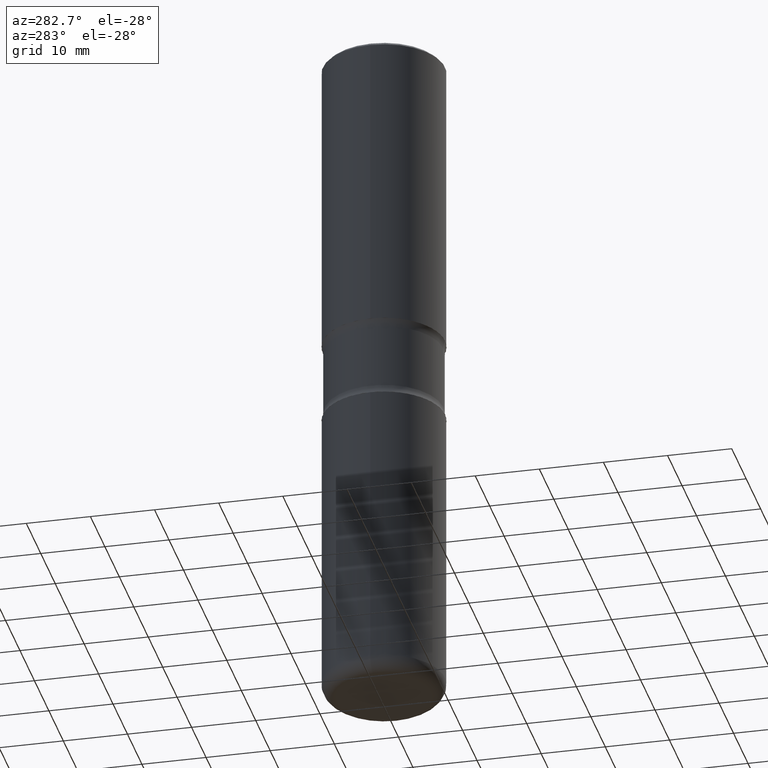
[diagram: clean part render]
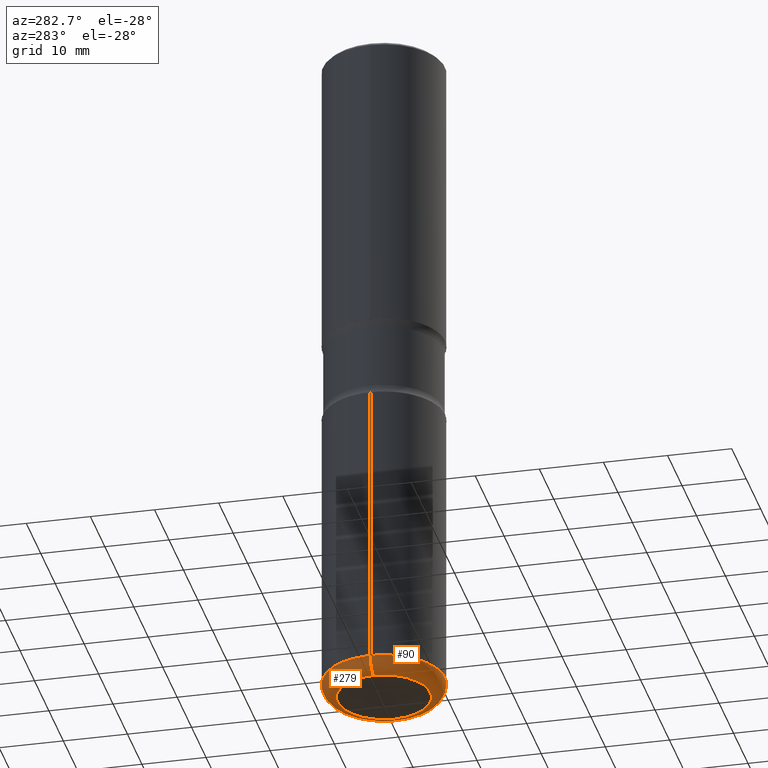
[diagram: same view with one multi-face feature highlighted, each face labeled with its STEP entity id]
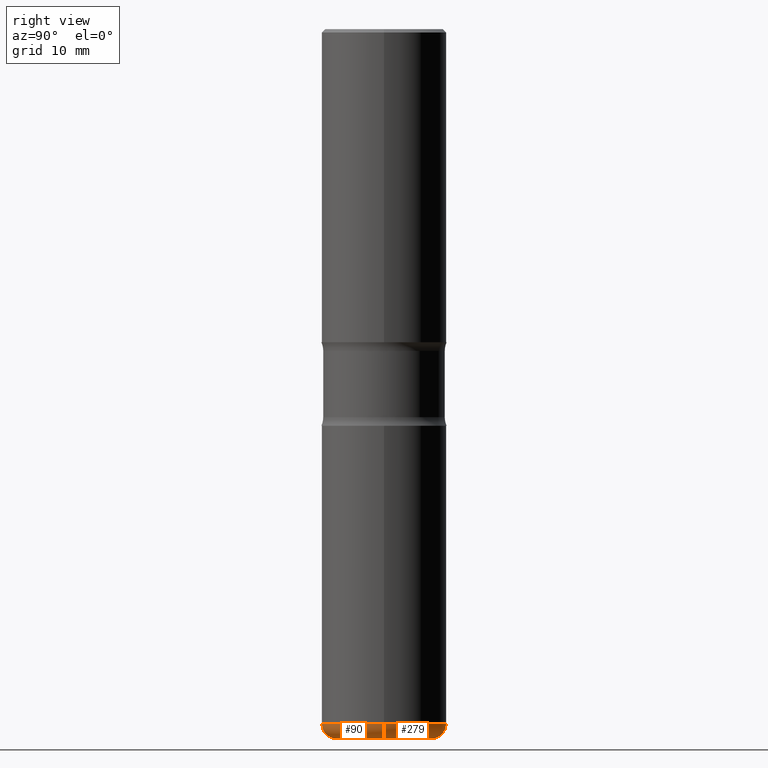
[diagram: same view with one multi-face feature highlighted, each face labeled with its STEP entity id]
A machine part, auxiliary view. The highlighted faces form ONE feature: a constant-radius fillet chain: 2 tangent blend faces with common blend radius 2.286 mm. The faces share edges in the B-rep.
A second angle (right view) of the same feature is appended — it is thin or edge-on in the first view.
Their STEP definitions:
[1] entity #279 (Torus):
#7 = ORIENTED_EDGE ( 'NONE', *, *, #220, .F. ) ;
#27 = DIRECTION ( 'NONE',  ( 1.000000000000000000, -6.982962677686273021E-15, 0.000000000000000000 ) ) ;
#38 = VERTEX_POINT ( 'NONE', #465 ) ;
#42 = CIRCLE ( 'NONE', #431, 0.2850000000000004197 ) ;
#49 = DIRECTION ( 'NONE',  ( 7.105427357601001859E-15, 1.000000000000000000, -3.491481338843145583E-15 ) ) ;
#57 = EDGE_CURVE ( 'NONE', #496, #396, #509, .T. ) ;
#86 = TOROIDAL_SURFACE ( 'NONE', #158, 0.2850000000000004197, 0.09000000000000016320 ) ;
#101 = CARTESIAN_POINT ( 'NONE',  ( 0.2850000000000004197, -1.682894005322395705E-14, -4.250000000000000000 ) ) ;
#102 = ORIENTED_EDGE ( 'NONE', *, *, #57, .F. ) ;
#129 = DIRECTION ( 'NONE',  ( -2.445468806185136597E-29, 3.491481338843145583E-15, 1.000000000000000000 ) ) ;
#139 = CIRCLE ( 'NONE', #463, 0.09000000000000020484 ) ;
#142 = DIRECTION ( 'NONE',  ( 1.000000000000000000, -6.982962677686265922E-15, 0.000000000000000000 ) ) ;
#156 = CARTESIAN_POINT ( 'NONE',  ( 1.017315023373016887E-28, -1.452456236958748398E-14, -4.160000000000000142 ) ) ;
#158 = AXIS2_PLACEMENT_3D ( 'NONE', #391, #551, #470 ) ;
#159 = CARTESIAN_POINT ( 'NONE',  ( 0.2850000000000004197, -1.651470673272807378E-14, -4.160000000000000142 ) ) ;
#170 = DIRECTION ( 'NONE',  ( 1.000000000000000000, -6.982962677686264344E-15, 0.000000000000000000 ) ) ;
#186 = CARTESIAN_POINT ( 'NONE',  ( 0.3750000000000004996, -1.714317337371984031E-14, -4.160000000000000142 ) ) ;
#188 = ORIENTED_EDGE ( 'NONE', *, *, #259, .T. ) ;
#201 = CIRCLE ( 'NONE', #292, 0.3750000000000003886 ) ;
#220 = EDGE_CURVE ( 'NONE', #396, #38, #201, .T. ) ;
#233 = DIRECTION ( 'NONE',  ( -2.445468806185136597E-29, 3.491481338843145583E-15, 1.000000000000000000 ) ) ;
#239 = AXIS2_PLACEMENT_3D ( 'NONE', #159, #421, #27 ) ;
#248 = EDGE_LOOP ( 'NONE', ( #188, #367, #7, #102 ) ) ;
#259 = EDGE_CURVE ( 'NONE', #496, #383, #42, .T. ) ;
#264 = CARTESIAN_POINT ( 'NONE',  ( -0.2850000000000004197, -1.249951557267119744E-14, -4.160000000000000142 ) ) ;
#279 = ADVANCED_FACE ( 'NONE', ( #552 ), #86, .T. ) ;
#292 = AXIS2_PLACEMENT_3D ( 'NONE', #156, #233, #142 ) ;
#309 = CARTESIAN_POINT ( 'NONE',  ( -0.2850000000000004197, -1.233688800182709450E-14, -4.250000000000000000 ) ) ;
#328 = CARTESIAN_POINT ( 'NONE',  ( 1.039324242628683054E-28, -1.483879569008337040E-14, -4.250000000000000000 ) ) ;
#367 = ORIENTED_EDGE ( 'NONE', *, *, #420, .T. ) ;
#383 = VERTEX_POINT ( 'NONE', #309 ) ;
#391 = CARTESIAN_POINT ( 'NONE',  ( 1.017315023373016887E-28, -1.452456236958748398E-14, -4.160000000000000142 ) ) ;
#396 = VERTEX_POINT ( 'NONE', #186 ) ;
#420 = EDGE_CURVE ( 'NONE', #383, #38, #139, .T. ) ;
#421 = DIRECTION ( 'NONE',  ( -6.982962677686266711E-15, -1.000000000000000000, 3.491481338843145583E-15 ) ) ;
#431 = AXIS2_PLACEMENT_3D ( 'NONE', #328, #129, #170 ) ;
#448 = DIRECTION ( 'NONE',  ( -1.000000000000000000, 7.105427357600996337E-15, 0.000000000000000000 ) ) ;
#463 = AXIS2_PLACEMENT_3D ( 'NONE', #264, #49, #448 ) ;
#465 = CARTESIAN_POINT ( 'NONE',  ( -0.3750000000000004996, -1.186002711048710513E-14, -4.160000000000000142 ) ) ;
#470 = DIRECTION ( 'NONE',  ( 1.000000000000000000, -6.982962677686266711E-15, 4.883557194083113462E-29 ) ) ;
#496 = VERTEX_POINT ( 'NONE', #101 ) ;
#509 = CIRCLE ( 'NONE', #239, 0.09000000000000020484 ) ;
#551 = DIRECTION ( 'NONE',  ( -2.445468806185136597E-29, 3.491481338843145583E-15, 1.000000000000000000 ) ) ;
#552 = FACE_OUTER_BOUND ( 'NONE', #248, .T. ) ;
[2] entity #90 (Torus):
#25 = CARTESIAN_POINT ( 'NONE',  ( 1.039324242628683054E-28, -1.483879569008337040E-14, -4.250000000000000000 ) ) ;
#27 = DIRECTION ( 'NONE',  ( 1.000000000000000000, -6.982962677686273021E-15, 0.000000000000000000 ) ) ;
#36 = ORIENTED_EDGE ( 'NONE', *, *, #532, .T. ) ;
#38 = VERTEX_POINT ( 'NONE', #465 ) ;
#49 = DIRECTION ( 'NONE',  ( 7.105427357601001859E-15, 1.000000000000000000, -3.491481338843145583E-15 ) ) ;
#57 = EDGE_CURVE ( 'NONE', #496, #396, #509, .T. ) ;
#79 = EDGE_CURVE ( 'NONE', #38, #396, #319, .T. ) ;
#82 = DIRECTION ( 'NONE',  ( 1.000000000000000000, -6.982962677686265922E-15, 0.000000000000000000 ) ) ;
#90 = ADVANCED_FACE ( 'NONE', ( #426 ), #424, .T. ) ;
#93 = AXIS2_PLACEMENT_3D ( 'NONE', #237, #303, #197 ) ;
#101 = CARTESIAN_POINT ( 'NONE',  ( 0.2850000000000004197, -1.682894005322395705E-14, -4.250000000000000000 ) ) ;
#139 = CIRCLE ( 'NONE', #463, 0.09000000000000020484 ) ;
#159 = CARTESIAN_POINT ( 'NONE',  ( 0.2850000000000004197, -1.651470673272807378E-14, -4.160000000000000142 ) ) ;
#186 = CARTESIAN_POINT ( 'NONE',  ( 0.3750000000000004996, -1.714317337371984031E-14, -4.160000000000000142 ) ) ;
#197 = DIRECTION ( 'NONE',  ( 1.000000000000000000, -6.982962677686266711E-15, 4.883557194083113462E-29 ) ) ;
#231 = CIRCLE ( 'NONE', #484, 0.2850000000000004197 ) ;
#237 = CARTESIAN_POINT ( 'NONE',  ( 1.017315023373016887E-28, -1.452456236958748398E-14, -4.160000000000000142 ) ) ;
#239 = AXIS2_PLACEMENT_3D ( 'NONE', #159, #421, #27 ) ;
#264 = CARTESIAN_POINT ( 'NONE',  ( -0.2850000000000004197, -1.249951557267119744E-14, -4.160000000000000142 ) ) ;
#303 = DIRECTION ( 'NONE',  ( -2.445468806185136597E-29, 3.491481338843145583E-15, 1.000000000000000000 ) ) ;
#309 = CARTESIAN_POINT ( 'NONE',  ( -0.2850000000000004197, -1.233688800182709450E-14, -4.250000000000000000 ) ) ;
#319 = CIRCLE ( 'NONE', #437, 0.3750000000000003886 ) ;
#338 = DIRECTION ( 'NONE',  ( 1.000000000000000000, -6.982962677686264344E-15, 0.000000000000000000 ) ) ;
#345 = ORIENTED_EDGE ( 'NONE', *, *, #420, .F. ) ;
#346 = CARTESIAN_POINT ( 'NONE',  ( 1.017315023373016887E-28, -1.452456236958748398E-14, -4.160000000000000142 ) ) ;
#361 = ORIENTED_EDGE ( 'NONE', *, *, #57, .T. ) ;
#383 = VERTEX_POINT ( 'NONE', #309 ) ;
#386 = ORIENTED_EDGE ( 'NONE', *, *, #79, .F. ) ;
#394 = EDGE_LOOP ( 'NONE', ( #345, #36, #361, #386 ) ) ;
#396 = VERTEX_POINT ( 'NONE', #186 ) ;
#420 = EDGE_CURVE ( 'NONE', #383, #38, #139, .T. ) ;
#421 = DIRECTION ( 'NONE',  ( -6.982962677686266711E-15, -1.000000000000000000, 3.491481338843145583E-15 ) ) ;
#424 = TOROIDAL_SURFACE ( 'NONE', #93, 0.2850000000000004197, 0.09000000000000016320 ) ;
#426 = FACE_OUTER_BOUND ( 'NONE', #394, .T. ) ;
#437 = AXIS2_PLACEMENT_3D ( 'NONE', #346, #474, #82 ) ;
#448 = DIRECTION ( 'NONE',  ( -1.000000000000000000, 7.105427357600996337E-15, 0.000000000000000000 ) ) ;
#458 = DIRECTION ( 'NONE',  ( -2.445468806185136597E-29, 3.491481338843145583E-15, 1.000000000000000000 ) ) ;
#463 = AXIS2_PLACEMENT_3D ( 'NONE', #264, #49, #448 ) ;
#465 = CARTESIAN_POINT ( 'NONE',  ( -0.3750000000000004996, -1.186002711048710513E-14, -4.160000000000000142 ) ) ;
#474 = DIRECTION ( 'NONE',  ( -2.445468806185136597E-29, 3.491481338843145583E-15, 1.000000000000000000 ) ) ;
#484 = AXIS2_PLACEMENT_3D ( 'NONE', #25, #458, #338 ) ;
#496 = VERTEX_POINT ( 'NONE', #101 ) ;
#509 = CIRCLE ( 'NONE', #239, 0.09000000000000020484 ) ;
#532 = EDGE_CURVE ( 'NONE', #383, #496, #231, .T. ) ;